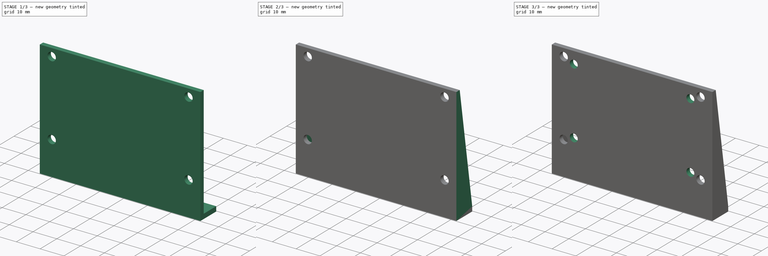
[diagram: build sequence overview — one tinted view per stage of 3, left to right]
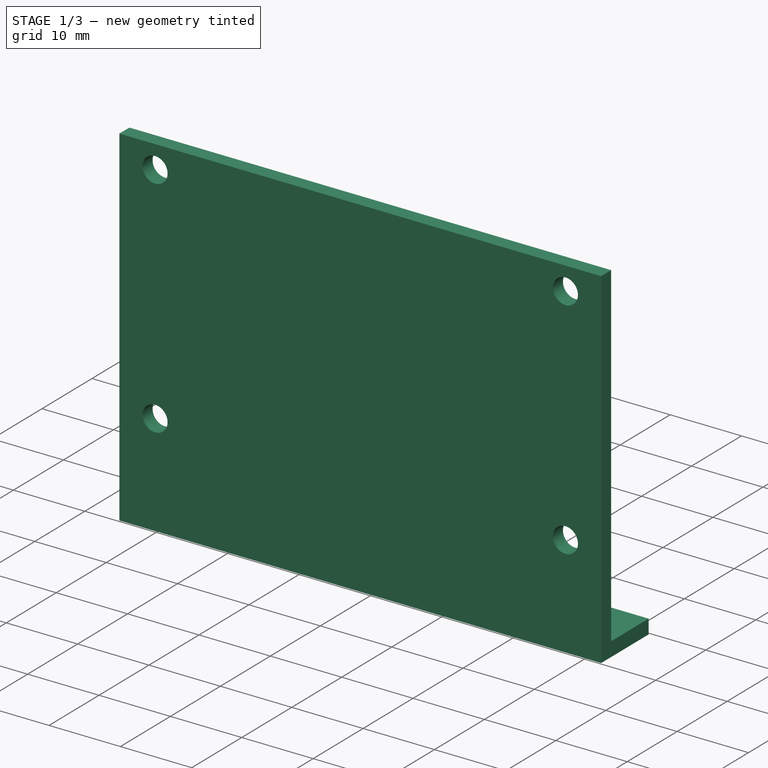
[diagram: stage 1 of 3 — iso view after this stage's code; geometry added in this stage tinted green]
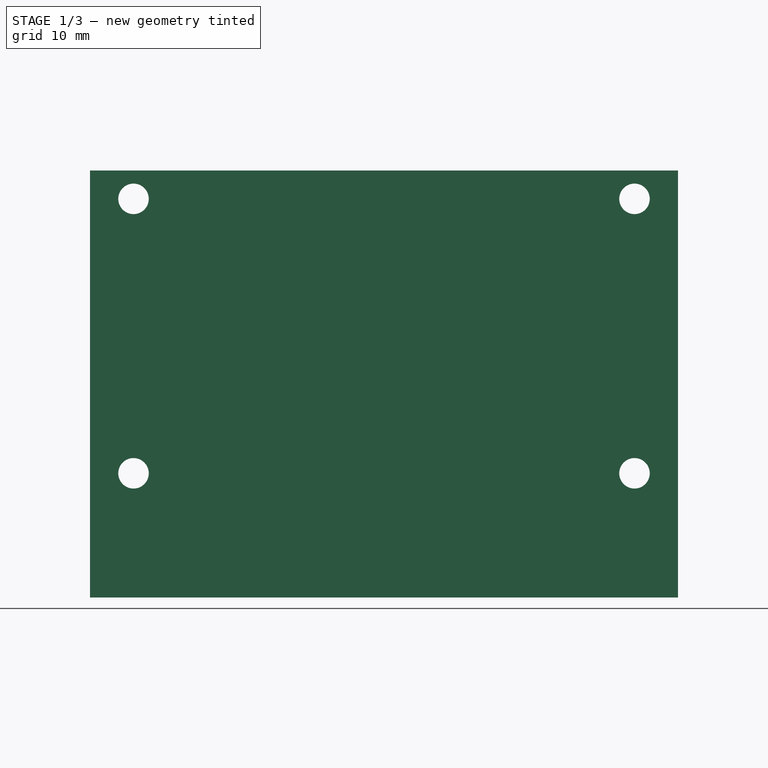
[diagram: stage 1 of 3 — front view after this stage's code; geometry added in this stage tinted green]
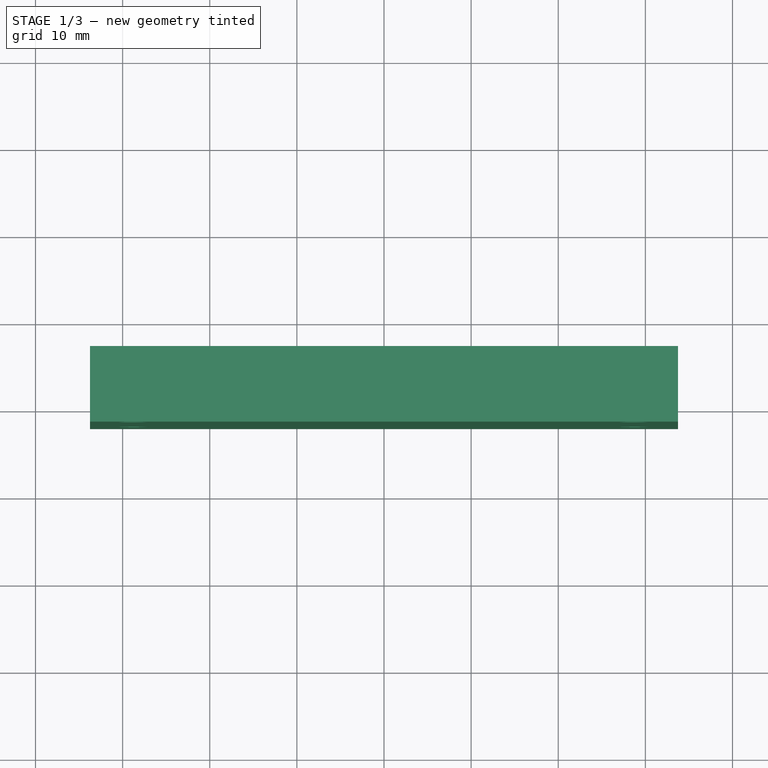
[diagram: stage 1 of 3 — top view after this stage's code; geometry added in this stage tinted green]
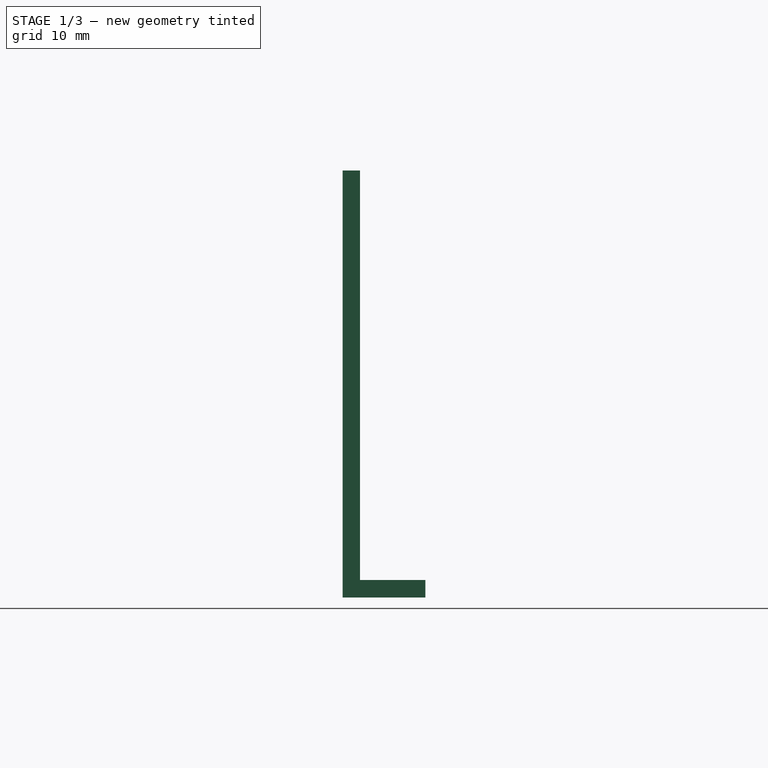
[diagram: stage 1 of 3 — right view after this stage's code; geometry added in this stage tinted green]
FCSTD DOCUMENT  (FreeCAD 1.0R39109 (Git))
Label: regulator_support
License: All rights reserved
LicenseURL: http://en.wikipedia.org/wiki/All_rights_reserved
objects: Sketcher::SketchObject×5, PartDesign::Pad×3, PartDesign::Pocket×2, PartDesign::Mirrored×1, PartDesign::Fillet×1, PartDesign::Body×1
note: 31 computed .brp shape members not serialized (recipe doc carries the construction recipe); baked Part::Feature solids carry a one-line shape summary decoded from their .brp

FEATURE [Sketcher::SketchObject] Sketch
  ArcFitTolerance = 1e-06
  AttachmentSupport = -> [XZ_Plane]
  FullyConstrained = true
  MakeInternals = false
  MapMode = 5
  Placement = pos=(0,0,0) rot=(1,0,0;1.5708rad)
  sketch-geometry (20):
    g0: LineSegment StartX=-33.75 StartY=0 StartZ=0 EndX=33.75 EndY=0 EndZ=0
    g1: LineSegment StartX=33.75 StartY=0 StartZ=0 EndX=33.75 EndY=49 EndZ=0
    g2: LineSegment StartX=33.75 StartY=49 StartZ=0 EndX=-33.75 EndY=49 EndZ=0
    g3: LineSegment StartX=-33.75 StartY=49 StartZ=0 EndX=-33.75 EndY=0 EndZ=0
    g4: Circle CenterX=-28.75 CenterY=45.75 CenterZ=0 NormalX=0 NormalY=0 NormalZ=1 AngleXU=0 Radius=1.75
    g5: Circle CenterX=-28.75 CenterY=14.25 CenterZ=0 NormalX=0 NormalY=0 NormalZ=1 AngleXU=0 Radius=1.75
    g6: Circle CenterX=28.75 CenterY=45.75 CenterZ=0 NormalX=0 NormalY=0 NormalZ=1 AngleXU=0 Radius=1.75
    g7: Circle CenterX=28.75 CenterY=14.25 CenterZ=0 NormalX=0 NormalY=0 NormalZ=1 AngleXU=0 Radius=1.75
    g8: LineSegment [constr] StartX=-28.75 StartY=14.25 StartZ=0 EndX=28.75 EndY=14.25 EndZ=0
    g9: LineSegment [constr] StartX=28.75 StartY=14.25 StartZ=0 EndX=28.75 EndY=45.75 EndZ=0
    g10: LineSegment [constr] StartX=28.75 StartY=45.75 StartZ=0 EndX=-28.75 EndY=45.75 EndZ=0
    g11: LineSegment [constr] StartX=-28.75 StartY=45.75 StartZ=0 EndX=-28.75 EndY=14.25 EndZ=0
    g12: LineSegment [constr] StartX=28.75 StartY=14.25 StartZ=0 EndX=28.75 EndY=10 EndZ=0
    g13: LineSegment [constr] StartX=30.3375 StartY=16.9996 StartZ=0 EndX=27.1625 EndY=16.9996 EndZ=0
    g14: LineSegment [constr] StartX=27.1625 StartY=16.9996 StartZ=0 EndX=25.575 EndY=14.25 EndZ=0
    g15: LineSegment [constr] StartX=25.575 StartY=14.25 StartZ=0 EndX=27.1625 EndY=11.5004 EndZ=0
    g16: LineSegment [constr] StartX=27.1625 StartY=11.5004 StartZ=0 EndX=30.3375 EndY=11.5004 EndZ=0
    g17: LineSegment [constr] StartX=30.3375 StartY=11.5004 StartZ=0 EndX=31.925 EndY=14.25 EndZ=0
    g18: LineSegment [constr] StartX=31.925 StartY=14.25 StartZ=0 EndX=30.3375 EndY=16.9996 EndZ=0
    g19: Circle [constr] CenterX=28.75 CenterY=14.25 CenterZ=0 NormalX=0 NormalY=0 NormalZ=1 AngleXU=0 Radius=3.175
  constraints (50):
    c: Coincident(g0,g1)
    c: Coincident(g1,g2)
    c: Coincident(g2,g3)
    c: Coincident(g3,g0)
    c: Horizontal(g0)
    c: Vertical(g1)
    c: Vertical(g3)
    c: PointOnObject(g0,g-1)
    c: Symmetric(g1,g2,g-2)
    c: Coincident(g8,g5)
    c: Coincident(g8,g7)
    c: Horizontal(g8)
    c: Coincident(g8,g9)
    c: Coincident(g9,g6)
    c: Vertical(g9)
    c: Coincident(g9,g10)
    c: Coincident(g10,g4)
    c: Coincident(g10,g11)
    c: Coincident(g11,g8)
    c: Vertical(g11)
    c: Equal(g7,g5)
    c: Equal(g5,g4)
    c: Equal(g4,g6)
    c: Radius(g6) = 1.75
    c: Symmetric(g6,g4,g-2)
    c: DistanceY(g9,g9) = 31.5
    c: DistanceX(g10,g10) = 57.5
    c: DistanceX(g2,g2) = 67.5
    c: Coincident(g12,g7)
    c: Vertical(g12)
    c: DistanceY(g12,g1) = 39
    c: DistanceY(g6,g1) = 3.25
    c: DistanceY(g1,g1) = 49
    c: DistanceY(g0,g12) = 10
    c: Coincident(g13,g14)
    c: Coincident(g14,g15)
    c: Coincident(g15,g16)
    c: Coincident(g16,g17)
    c: Coincident(g17,g18)
    c: Coincident(g18,g13)
    c: Equal(g13, g14-g18) x5
    c: PointOnObject(g13,g19)
    c: PointOnObject(g14,g19)
    c: PointOnObject(g15,g19)
    c: PointOnObject(g16,g19)
    c: PointOnObject(g17,g19)
    c: PointOnObject(g18,g19)
    c: Coincident(g19,g7)
    c: Horizontal(g17,g14)
    c: DistanceX(g14,g17) = 6.35
FEATURE [PartDesign::Pad] Pad  label="BasePad"
  Direction = (0,-1,2e-16)
  Length = 2
  Length2 = 10
  Placement = pos=(0,0,0) rot=(1,0,0;1.5708rad)
  Profile = -> Sketch
  ReferenceAxis = -> Sketch [N_Axis]
  Refine = true
  Suppressed = false
  Type = 0
FEATURE [Sketcher::SketchObject] Sketch001
  ArcFitTolerance = 1e-06
  AttachmentSupport = -> [Pad]
  ExternalGeometry = -> [Pad]
  FullyConstrained = true
  MakeInternals = false
  MapMode = 5
  Placement = pos=(0,5.6e-15,0) rot=(-1,0,0;1.5708rad)
  sketch-geometry (4):
    g0: LineSegment StartX=-33.75 StartY=0 StartZ=0 EndX=-33.75 EndY=-2 EndZ=0
    g1: LineSegment StartX=-33.75 StartY=-2 StartZ=0 EndX=33.75 EndY=-2 EndZ=0
    g2: LineSegment StartX=33.75 StartY=-2 StartZ=0 EndX=33.75 EndY=0 EndZ=0
    g3: LineSegment StartX=33.75 StartY=0 StartZ=0 EndX=-33.75 EndY=0 EndZ=0
  constraints (11):
    c: Coincident(g0,g1)
    c: Coincident(g1,g2)
    c: Coincident(g2,g3)
    c: Coincident(g3,g0)
    c: Vertical(g0)
    c: Vertical(g2)
    c: Horizontal(g1)
    c: Horizontal(g3)
    c: Coincident(g0,g-3)
    c: Vertical(g1,g-4)
    c: DistanceY(g2,g2) = 2
FEATURE [PartDesign::Pad] Pad001  label="LPad"
  BaseFeature = -> Pad
  Direction = (0,1,2e-16)
  Length = 7.5
  Length2 = 10
  Placement = pos=(0,0,0) rot=(1,0,0;1.5708rad)
  Profile = -> Sketch001
  ReferenceAxis = -> Sketch001 [N_Axis]
  Refine = true
  Suppressed = false
  Type = 0
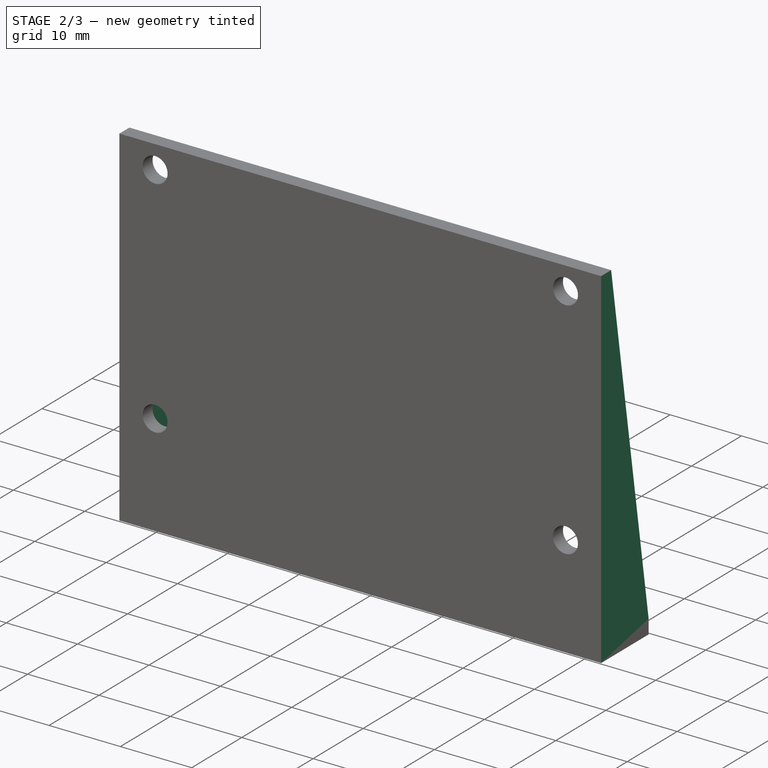
[diagram: stage 2 of 3 — iso view after this stage's code; geometry added in this stage tinted green]
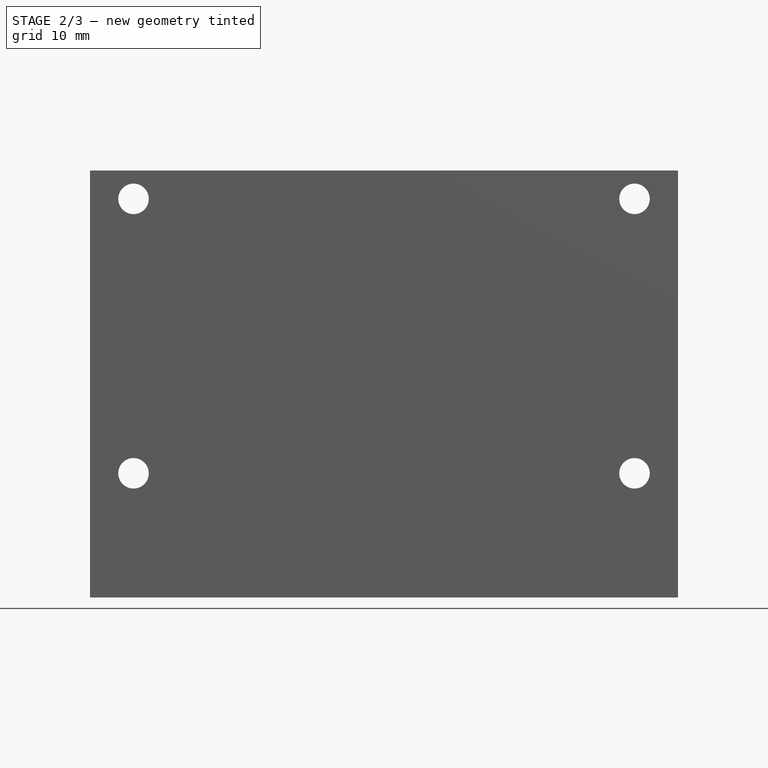
[diagram: stage 2 of 3 — front view after this stage's code; geometry added in this stage tinted green]
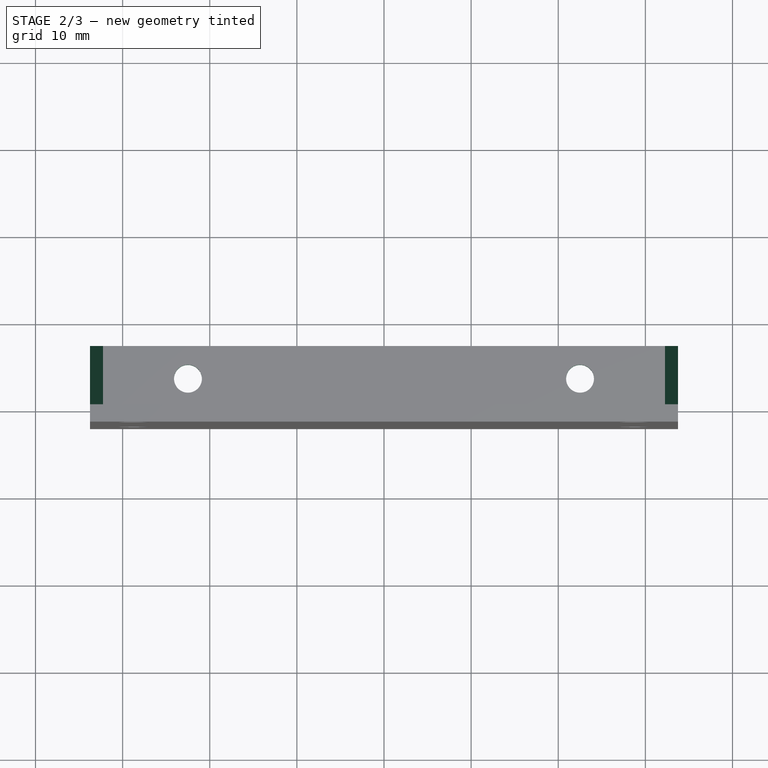
[diagram: stage 2 of 3 — top view after this stage's code; geometry added in this stage tinted green]
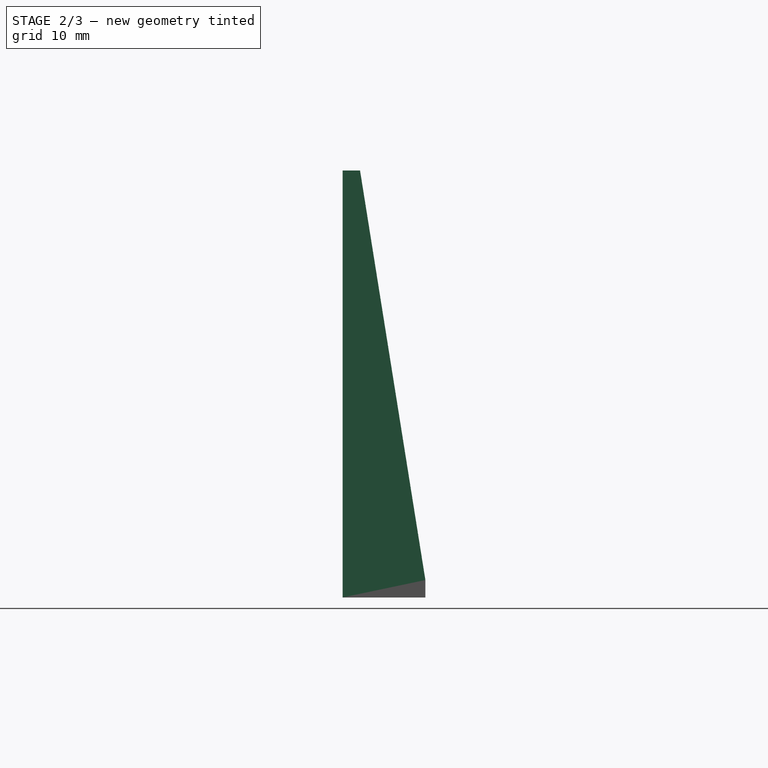
[diagram: stage 2 of 3 — right view after this stage's code; geometry added in this stage tinted green]
FEATURE [Sketcher::SketchObject] Sketch002
  ArcFitTolerance = 1e-06
  AttachmentSupport = -> [Pad001]
  ExternalGeometry = -> [Pad001]
  FullyConstrained = true
  MakeInternals = false
  MapMode = 5
  Placement = pos=(33.75,0,0) rot=(0.707107,0,0.707107;3.14159rad)
  sketch-geometry (3):
    g0: LineSegment StartX=2 StartY=0 StartZ=0 EndX=2 EndY=-7.5 EndZ=0
    g1: LineSegment StartX=2 StartY=-7.5 StartZ=0 EndX=49 EndY=9e-16 EndZ=0
    g2: LineSegment StartX=49 StartY=9e-16 StartZ=0 EndX=2 EndY=0 EndZ=0
  constraints (6):
    c: Coincident(g-4,g0)
    c: Coincident(g0,g-3)
    c: Coincident(g0,g1)
    c: Coincident(g1,g-4)
    c: Coincident(g1,g2)
    c: Coincident(g2,g0)
FEATURE [PartDesign::Pad] Pad002  label="ReinforcementPad"
  BaseFeature = -> Pad001
  Direction = (1,0,-2e-16)
  Length = 1.5
  Length2 = 10
  Placement = pos=(0,0,0) rot=(1,0,0;1.5708rad)
  Profile = -> Sketch002
  ReferenceAxis = -> Sketch002 [N_Axis]
  Refine = true
  Reversed = true
  Suppressed = false
  Type = 0
FEATURE [PartDesign::Mirrored] Mirrored  label="ReinforcementMirror"
  BaseFeature = -> Pad002
  MirrorPlane = -> YZ_Plane
  Originals = -> [Pad002]
  Placement = pos=(0,0,0) rot=(1,0,0;1.5708rad)
  Refine = true
  Suppressed = false
  TransformMode = 0
FEATURE [Sketcher::SketchObject] Sketch003
  ArcFitTolerance = 1e-06
  AttachmentSupport = -> [Mirrored]
  ExternalGeometry = -> [Mirrored]
  FullyConstrained = true
  MakeInternals = false
  MapMode = 5
  Placement = pos=(0,0,2) rot=(0,0,1;3.14159rad)
  sketch-geometry (3):
    g0: Circle CenterX=-22.5 CenterY=-3.75 CenterZ=0 NormalX=0 NormalY=0 NormalZ=1 AngleXU=0 Radius=1.6
    g1: Circle CenterX=22.5 CenterY=-3.75 CenterZ=0 NormalX=0 NormalY=0 NormalZ=1 AngleXU=0 Radius=1.6
    g2: GeomPoint X=-32.25 Y=-3.75 Z=0
  constraints (6):
    c: Equal(g1,g0)
    c: Radius(g0) = 1.6
    c: Symmetric(g-3,g-3,g2)
    c: Horizontal(g2,g0)
    c: Symmetric(g0,g1,g-2)
    c: DistanceX(g0,g1) = 45
FEATURE [PartDesign::Pocket] Pocket  label="BaseScrewPokcet"
  BaseFeature = -> Mirrored
  Direction = (0,0,-1)
  Length = 5
  Length2 = 5
  Placement = pos=(0,0,0) rot=(1,0,0;1.5708rad)
  Profile = -> Sketch003
  ReferenceAxis = -> Sketch003 [N_Axis]
  Refine = true
  Suppressed = false
  Type = 1
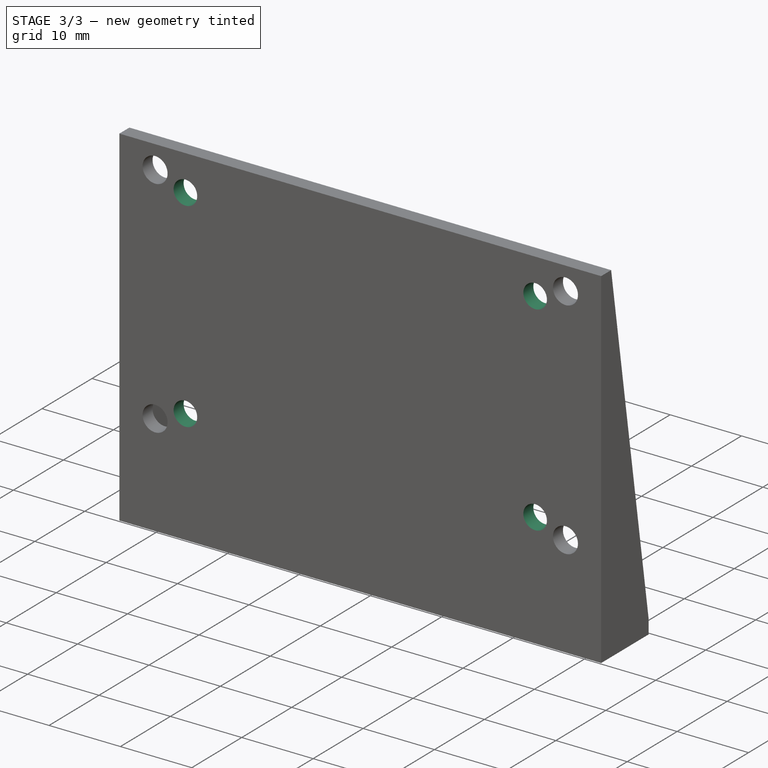
[diagram: stage 3 of 3 — iso view after this stage's code; geometry added in this stage tinted green]
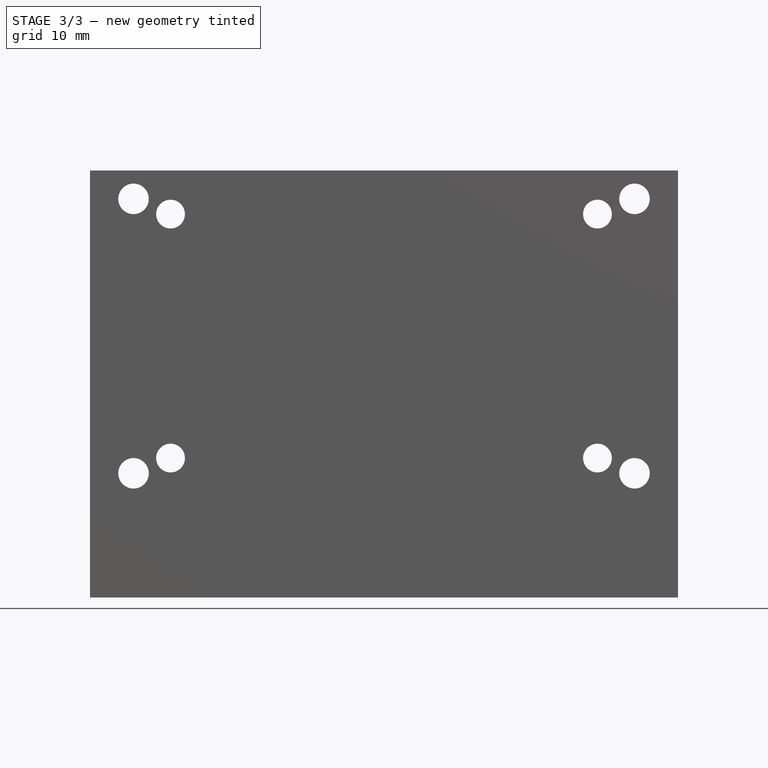
[diagram: stage 3 of 3 — front view after this stage's code; geometry added in this stage tinted green]
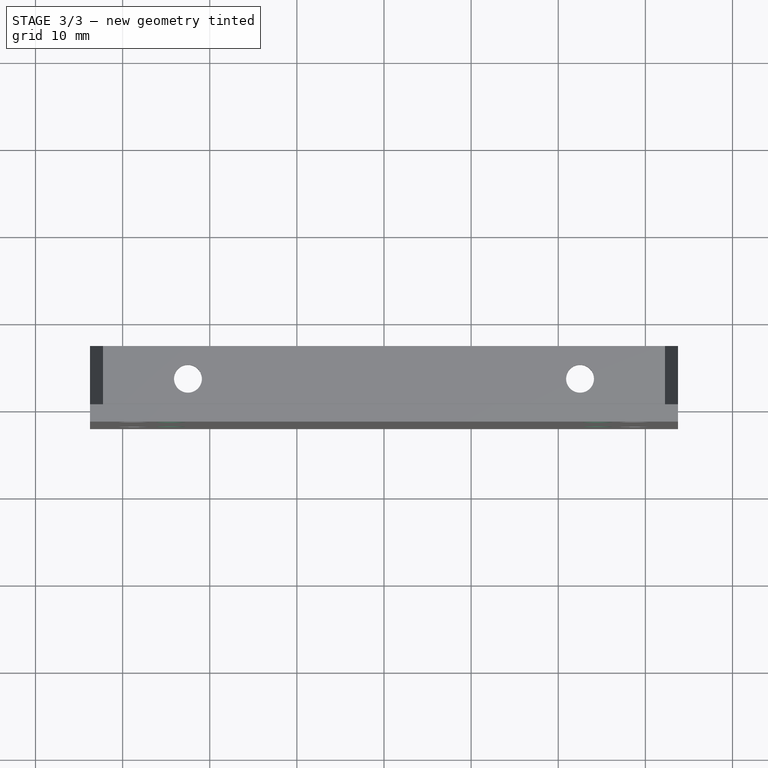
[diagram: stage 3 of 3 — top view after this stage's code; geometry added in this stage tinted green]
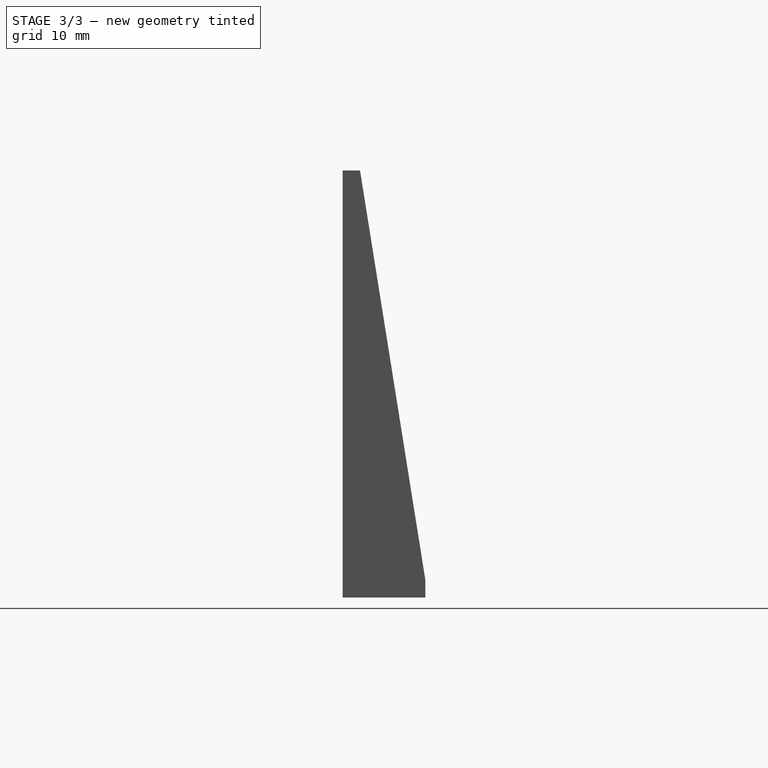
[diagram: stage 3 of 3 — right view after this stage's code; geometry added in this stage tinted green]
FEATURE [PartDesign::Fillet] Fillet  label="ReinforcementFillet"
  Base = -> Pocket [Edge39]
  BaseFeature = -> Pocket
  Placement = pos=(0,0,0) rot=(1,0,0;1.5708rad)
  Radius = 1
  Refine = true
  SupportTransform = false
  Suppressed = false
  UseAllEdges = false
FEATURE [Sketcher::SketchObject] Sketch004
  ArcFitTolerance = 1e-06
  AttachmentSupport = -> [Fillet]
  ExternalGeometry = -> [Fillet]
  FullyConstrained = true
  MakeInternals = false
  MapMode = 5
  Placement = pos=(0,-2,0) rot=(1,0,0;1.5708rad)
  sketch-geometry (9):
    g0: LineSegment [constr] StartX=-24.5 StartY=44 StartZ=0 EndX=-24.5 EndY=16 EndZ=0
    g1: LineSegment [constr] StartX=-24.5 StartY=16 StartZ=0 EndX=24.5 EndY=16 EndZ=0
    g2: LineSegment [constr] StartX=24.5 StartY=16 StartZ=0 EndX=24.5 EndY=44 EndZ=0
    g3: LineSegment [constr] StartX=24.5 StartY=44 StartZ=0 EndX=-24.5 EndY=44 EndZ=0
    g4: GeomPoint [constr] X=-2.4e-15 Y=30 Z=0
    g5: Circle CenterX=-24.5 CenterY=44 CenterZ=0 NormalX=0 NormalY=0 NormalZ=1 AngleXU=0 Radius=1.65
    g6: Circle CenterX=24.5 CenterY=44 CenterZ=0 NormalX=0 NormalY=0 NormalZ=1 AngleXU=0 Radius=1.65
    g7: Circle CenterX=24.5 CenterY=16 CenterZ=0 NormalX=0 NormalY=0 NormalZ=1 AngleXU=0 Radius=1.65
    g8: Circle CenterX=-24.5 CenterY=16 CenterZ=0 NormalX=0 NormalY=0 NormalZ=1 AngleXU=0 Radius=1.65
  constraints (20):
    c: Coincident(g0,g1)
    c: Coincident(g1,g2)
    c: Coincident(g2,g3)
    c: Coincident(g3,g0)
    c: Vertical(g0)
    c: Vertical(g2)
    c: Horizontal(g1)
    c: Horizontal(g3)
    c: Symmetric(g2,g0,g4)
    c: Symmetric(g-4,g-3,g4)
    c: DistanceY(g2,g2) = 28
    c: DistanceX(g3,g3) = 49
    c: Coincident(g5,g0)
    c: Coincident(g6,g2)
    c: Coincident(g7,g1)
    c: Coincident(g8,g0)
    c: Equal(g8,g5)
    c: Equal(g5,g6)
    c: Equal(g6,g7)
    c: Radius(g7) = 1.65
FEATURE [PartDesign::Pocket] Pocket001  label="AdditionalScrewPocket"
  BaseFeature = -> Fillet
  Direction = (0,1,-2e-16)
  Length = 5
  Length2 = 5
  Placement = pos=(0,0,0) rot=(1,0,0;1.5708rad)
  Profile = -> Sketch004
  ReferenceAxis = -> Sketch004 [N_Axis]
  Refine = true
  Suppressed = false
  Type = 1
FEATURE [PartDesign::Body] Body  label="regulator_support"
  AllowCompound = false
  Group = -> [Sketch,Pad,Sketch001,Pad001,Sketch002,Pad002,Mirrored,Sketch003,Pocket,Fillet,Sketch004,Pocket001]
  Origin = -> Origin
  Tip = -> Pocket001
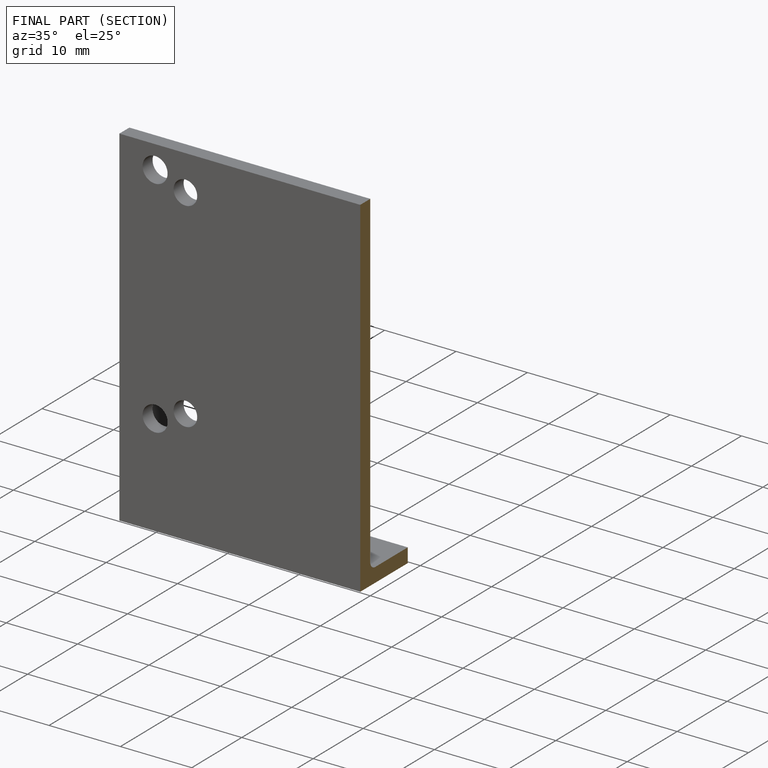
[diagram: finished part — half-section view (interior)]
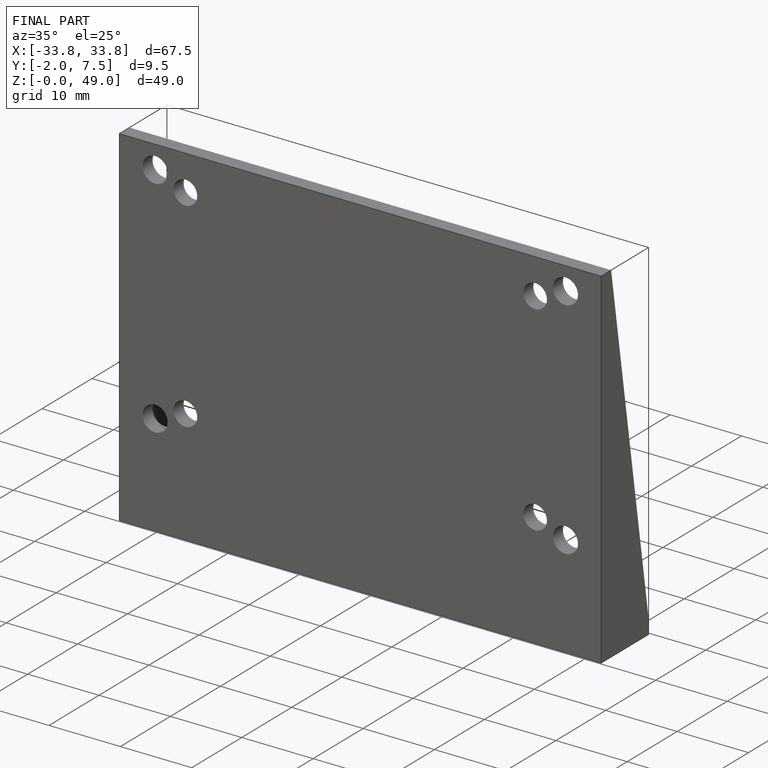
[diagram: finished part — iso view with bounding-box wireframe]
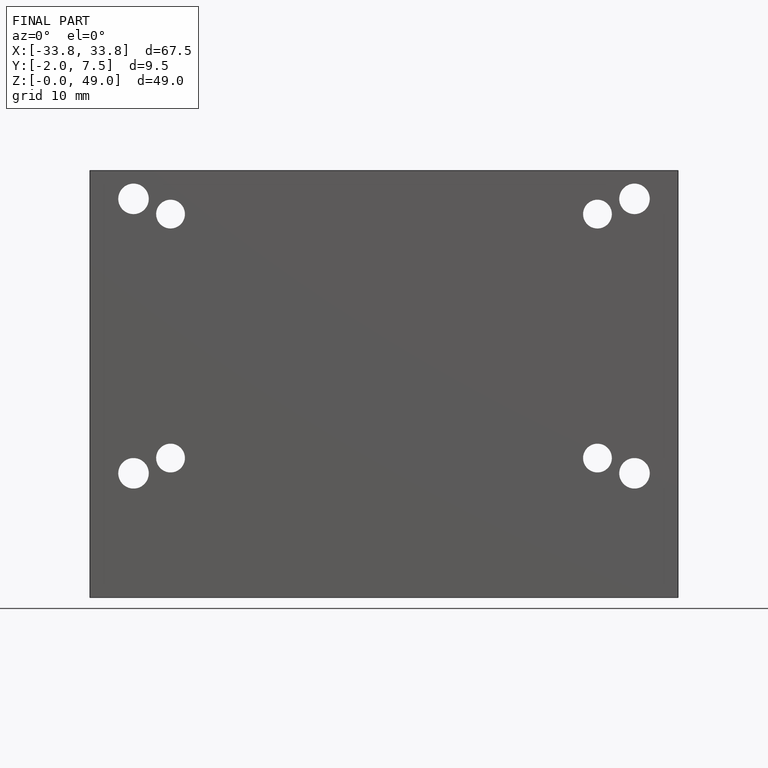
[diagram: finished part — front view with bounding-box wireframe]
